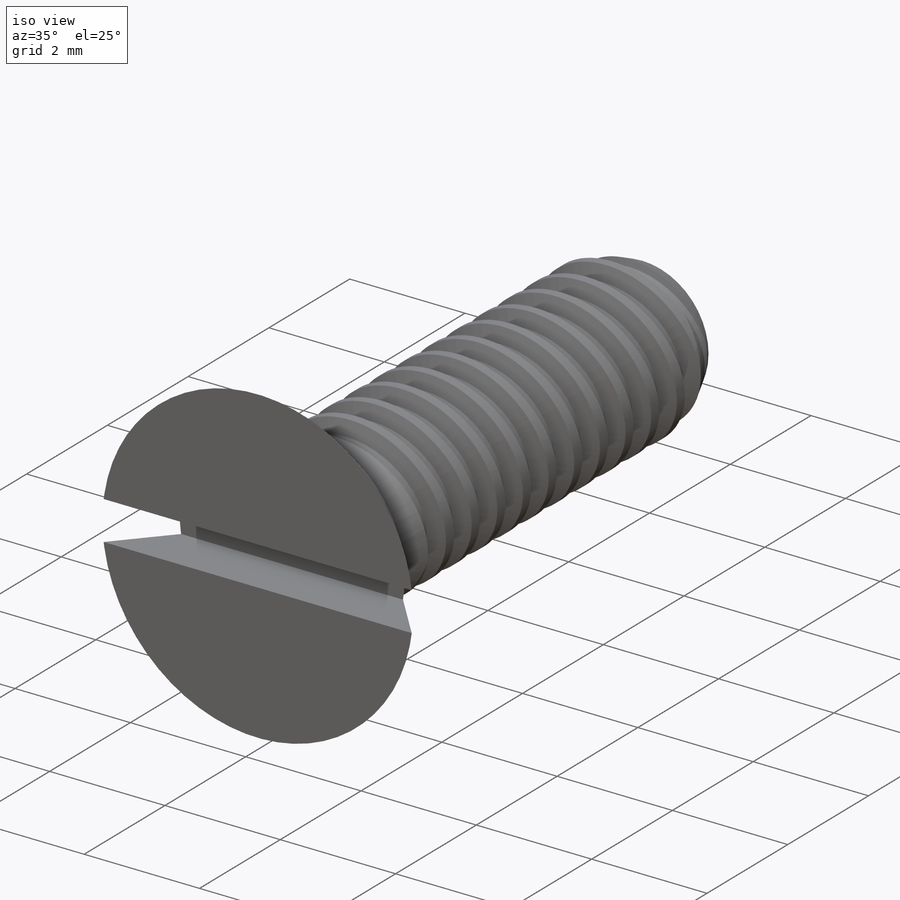
[diagram: iso view]
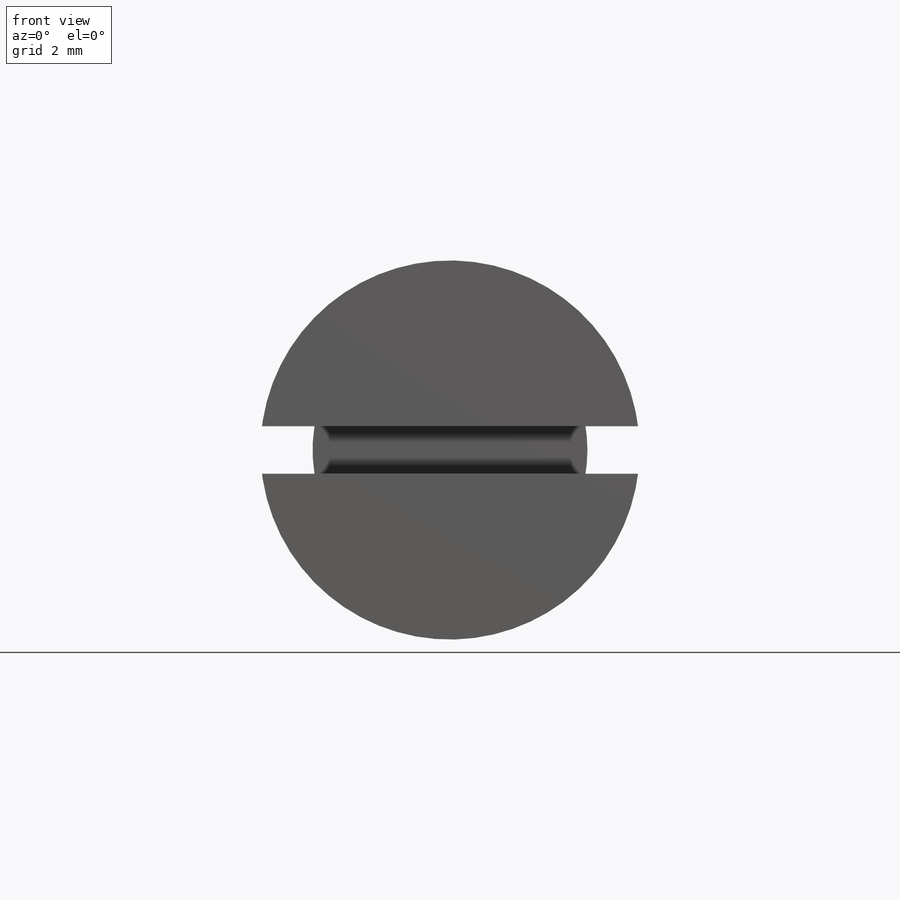
[diagram: front view]
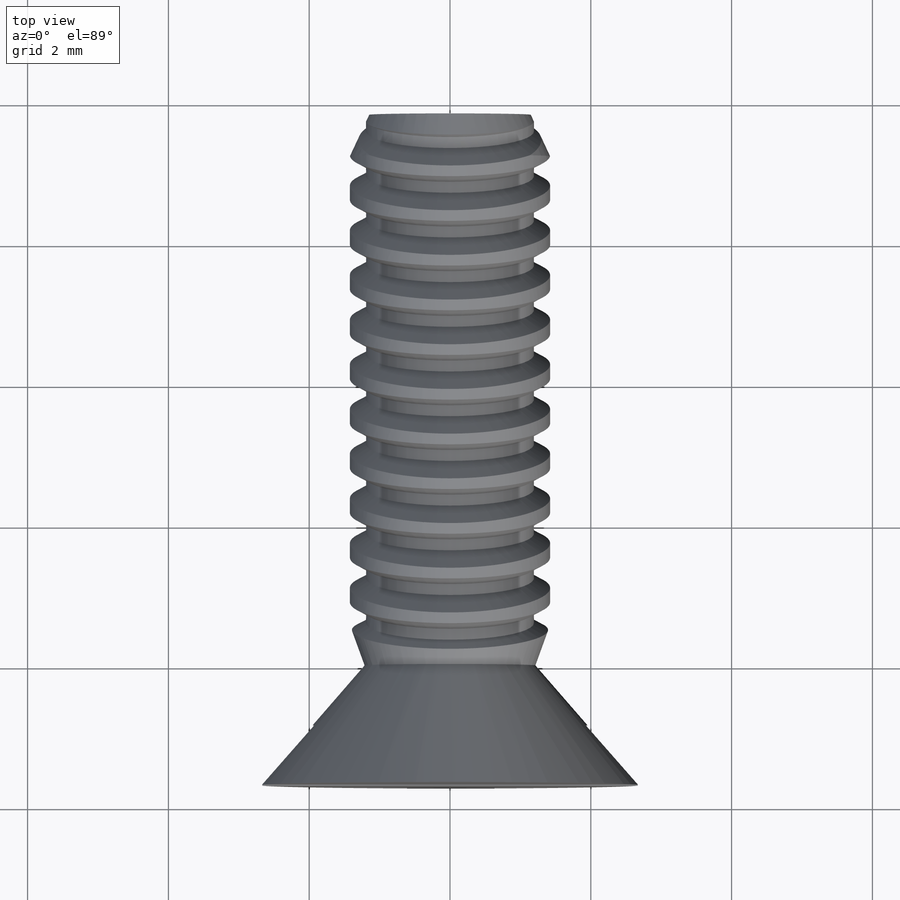
[diagram: top view]
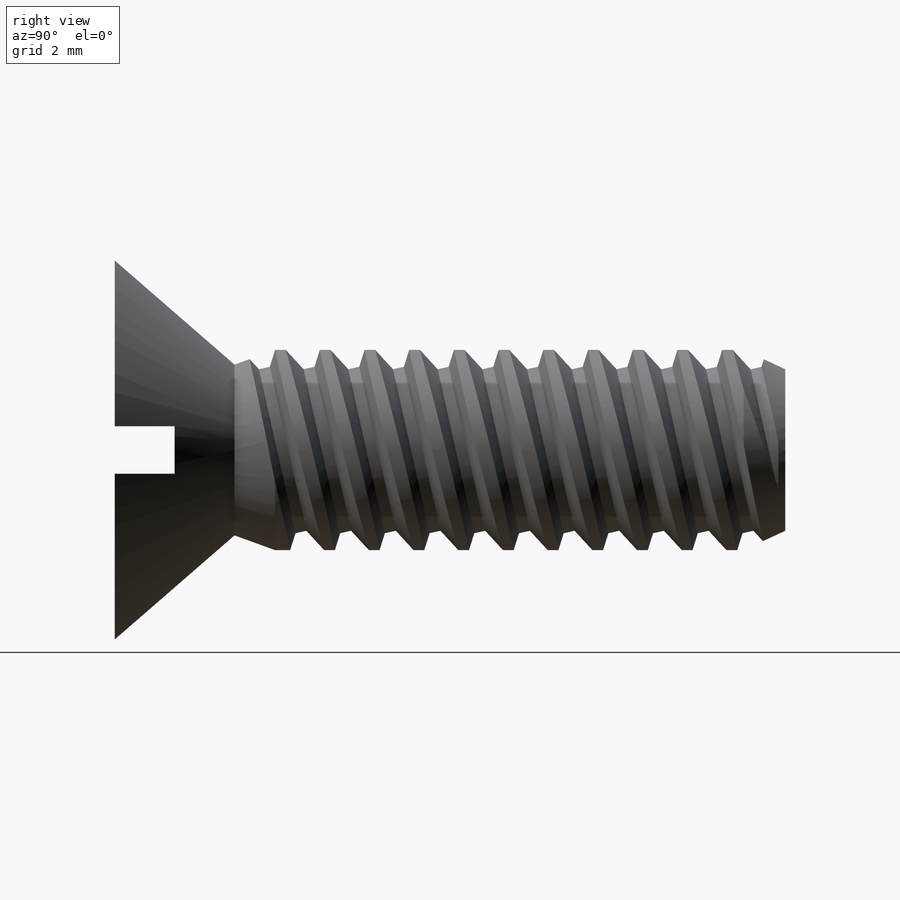
[diagram: right view]
SOLIDWORKS PART (.sldprt)
format: sldprt  version: not decoded by parser v0  size: 726,016 bytes
history: native  units: mm
features: sketch x7, cut_revolve x4, material x1, extrude x1, revolve x1, pattern_linear x1, cut_extrude x1 (+11 scaffold rows collapsed)
feature tree (27):
  scaffold x11  (default folders/planes/origin — collapsed)
  material  "Brass"
  sketch  "Sketch1"  dims[Washer OD=8.3312mm Head Dia=5.3848mm Hex=6.35mm]
  extrude  "Extrude3"  Depth=1.7018mm Head Ht=1.7018mm
  sketch  "Sketch11"  dims[c1.D1=0.254mm c1.D2=~1.642533mm c1.D3=~1.947333mm c2.D2=~1.66218mm c3.D2=5.0deg c3.D1=~3.294374mm c4.D1=82.0deg]
  cut_revolve  "Cut-Revolve3"  Angle=360deg
  sketch  "Sketch4"  dims[c1.Screw Dia=2.8448mm c1.Screw Length=12.7mm c1.Drill Length=~7.14375mm c1.D1=~1.417672mm c2.D1=45.0deg c2.Body Length=7.8232mm c2.Screw Length=12.7mm c3.Screw Length=25.4mm c3.D1=90.0deg c4.Screw Length=9.525mm c4.D1=2.54mm]
  revolve  "Revolve1"  Angle=360deg
  sketch  "Sketch5"  dims[c1.Pitch=0.635mm c1.D2=~0.079375mm c1.D3=~0.15875mm c1.D4=~0.571547mm c2.D4=60.0deg c2.D1=0.635mm]
  cut_revolve  "Cut-Revolve1"  Angle=360deg
  sketch  "Sketch13"  dims[c1.D1=~1.645991mm c2.D1=25.0deg c2.D2=2.8448mm]
  cut_revolve  "Cut-Revolve4"  Angle=360deg
  sketch  "Sketch16"  dims[c1.D1=~1.053355mm c2.D1=20.0deg]
  cut_revolve  "Cut-Revolve5"  Angle=360deg
  pattern_linear  "LPattern2"  Count1=12 Count2=1 Spacing1=0.635mm Spacing2=50mm
  sketch  "Sketch15"  dims[Slot Width=0.6731mm]
  cut_extrude  "Cut-Extrude5"  Depth=0.8509mm Slot Depth=0.8509mm
decode coverage: 15 of 15 modeling features carry decoded parameters
note: ~ marks probable driven/reference dimensions
note: suppression state not decoded; provenance and decode notes live in map.json
